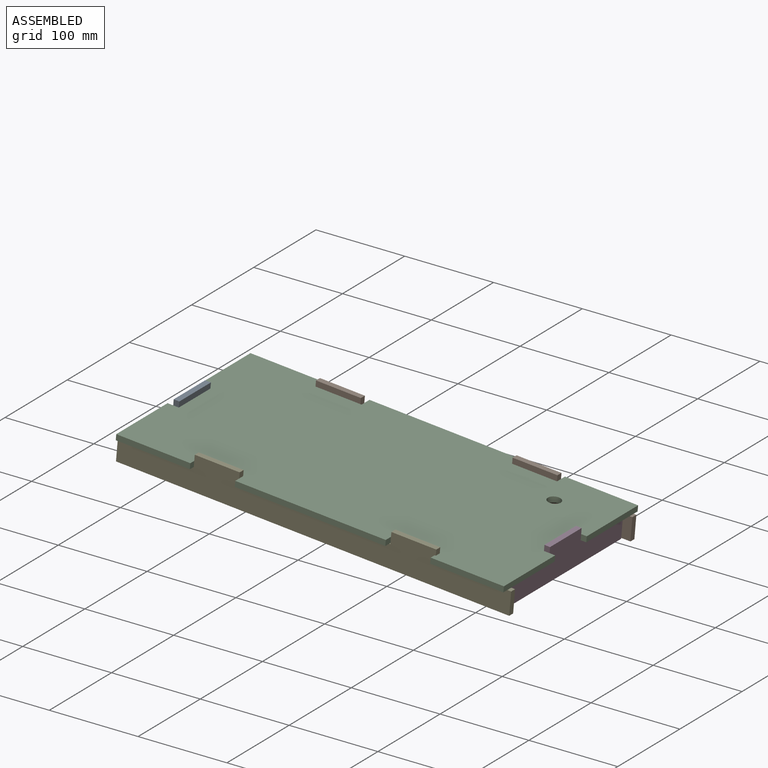
[diagram: assembled view]
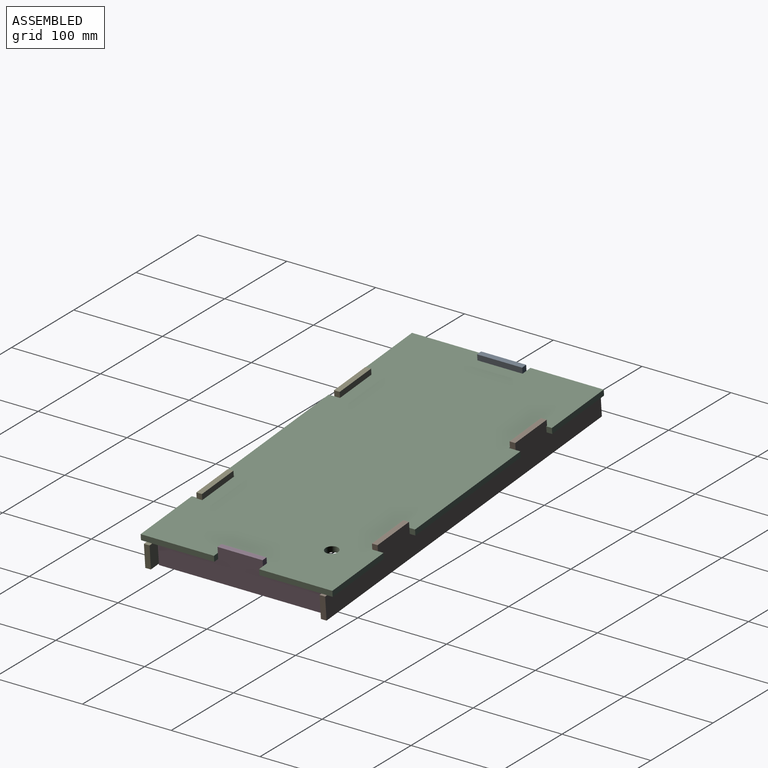
[diagram: assembled view, second angle]
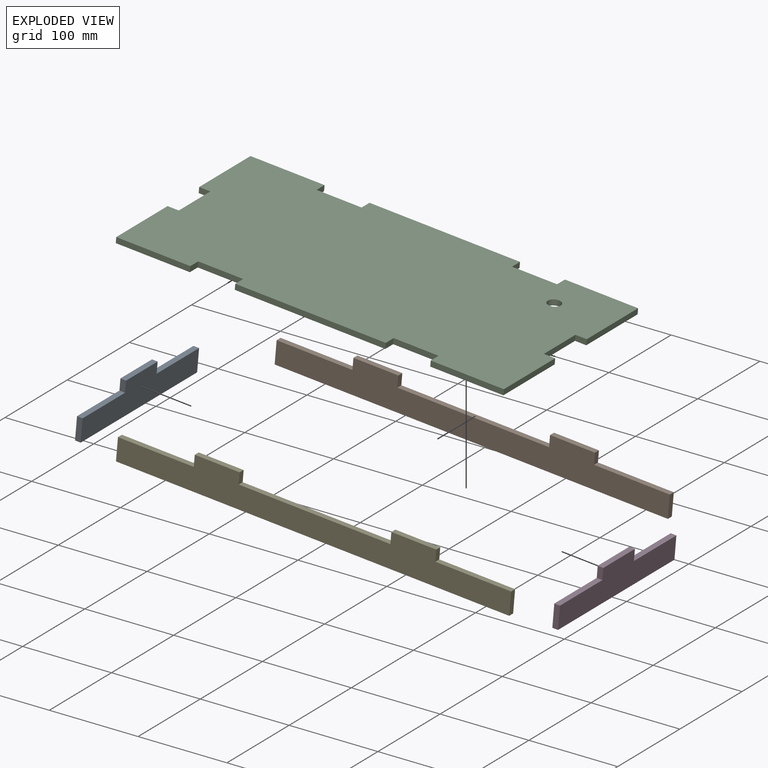
[diagram: exploded view]
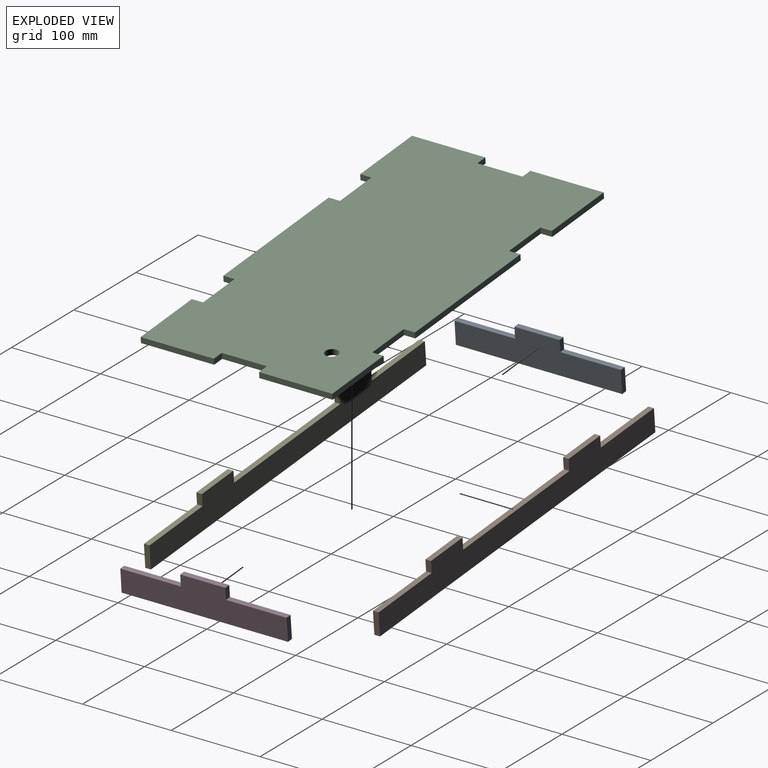
[diagram: exploded view, second angle]
ASSEMBLY  parts=5 mates=4
PART A: 10 faces, bbox 187.3x38.1x6.4 mm
  f0: plane 12.7x6.35mm, normal (1,0,0), area 80.6mm2, adj f1,f7,f8,f9
  f1: plane 50.8x6.35mm, normal (0,1,0), area 322.6mm2, adj f0,f2,f8,f9
  f2: plane 12.7x6.35mm, normal (-1,0,0), area 80.6mm2, adj f1,f3,f8,f9
  f3: plane 68.26x6.35mm, normal (0,1,0), area 433.5mm2, adj f2,f4,f8,f9
  f4: plane 25.4x6.35mm, normal (-1,0,0), area 161.3mm2, adj f3,f5,f8,f9
  f5: plane 187.33x6.35mm, normal (0,-1,0), area 1189.5mm2, adj f4,f6,f8,f9
  f6: plane 25.4x6.35mm, normal (1,0,0), area 161.3mm2, adj f5,f7,f8,f9
  f7: plane 68.26x6.35mm, normal (0,1,0), area 433.5mm2, adj f0,f6,f8,f9
  f8: plane 187.33x38.1mm, normal (0,0,1), area 5403.2mm2, adj f0,f1,f2,f3,f4,f5,f6,f7
  f9: plane 187.33x38.1mm, normal (0,0,-1), area 5403.2mm2, adj f0,f1,f2,f3,f4,f5,f6,f7
PART B: 14 faces, bbox 444.5x6.4x38.1 mm
  f0: plane 50.8x6.35mm, normal (0,0,1), area 322.6mm2, adj f1,f11,f12,f13
  f1: plane 12.7x6.35mm, normal (-1,0,0), area 80.6mm2, adj f0,f2,f12,f13
  f2: plane 85.73x6.35mm, normal (0,0,1), area 544.4mm2, adj f1,f3,f12,f13
  f3: plane 25.4x6.35mm, normal (-1,0,0), area 161.3mm2, adj f2,f4,f12,f13
  f4: plane 444.5x6.35mm, normal (0,0,-1), area 2822.6mm2, adj f3,f5,f12,f13
  f5: plane 25.4x6.35mm, normal (1,0,0), area 161.3mm2, adj f4,f6,f12,f13
  f6: plane 85.73x6.35mm, normal (0,0,1), area 544.4mm2, adj f5,f7,f12,f13
  f7: plane 12.7x6.35mm, normal (1,0,0), area 80.6mm2, adj f6,f8,f12,f13
  f8: plane 50.8x6.35mm, normal (0,0,1), area 322.6mm2, adj f7,f9,f12,f13
  f9: plane 12.7x6.35mm, normal (-1,0,0), area 80.6mm2, adj f8,f10,f12,f13
  f10: plane 171.45x6.35mm, normal (0,0,1), area 1088.7mm2, adj f9,f11,f12,f13
  f11: plane 12.7x6.35mm, normal (1,0,0), area 80.6mm2, adj f0,f10,f12,f13
  f12: plane 444.5x38.1mm, normal (0,-1,0), area 12580.6mm2, adj f0,f1,f2,f3,f4,f5,f6,f7
  f13: plane 444.5x38.1mm, normal (0,1,0), area 12580.6mm2, adj f0,f1,f2,f3,f4,f5,f6,f7
PART C: 31 faces, bbox 438.2x215.9x6.4 mm
  f0: plane 12.7x6.35mm, normal (-1,0,0), area 80.6mm2, adj f1,f27,f29,f30
  f1: plane 50.8x6.35mm, normal (0,1,0), area 322.6mm2, adj f0,f2,f29,f30
  f2: plane 12.7x6.35mm, normal (1,0,0), area 80.6mm2, adj f1,f3,f29,f30
  f3: plane 83.71x6.35mm, normal (0,1,0), area 531.6mm2, adj f2,f4,f29,f30
  f4: plane 82.55x6.35mm, normal (-1,0,0), area 524.2mm2, adj f3,f5,f29,f30
  f5: plane 12.7x6.35mm, normal (0,-1,0), area 80.6mm2, adj f4,f6,f29,f30
  f6: plane 50.8x6.35mm, normal (-1,0,0), area 322.6mm2, adj f5,f7,f29,f30
  f7: plane 12.7x6.35mm, normal (0,1,0), area 80.6mm2, adj f6,f8,f29,f30
  f8: plane 82.55x6.35mm, normal (-1,0,0), area 524.2mm2, adj f7,f9,f29,f30
  f9: plane 83.71x6.35mm, normal (0,-1,0), area 531.6mm2, adj f8,f10,f29,f30
  f10: plane 12.7x6.35mm, normal (1,0,0), area 80.6mm2, adj f9,f11,f29,f30
  f11: plane 50.8x6.35mm, normal (0,-1,0), area 322.6mm2, adj f10,f12,f29,f30
  f12: plane 12.7x6.35mm, normal (-1,0,0), area 80.6mm2, adj f11,f13,f29,f30
  f13: plane 170.15x6.35mm, normal (0,-1,0), area 1080.4mm2, adj f12,f14,f29,f30
  f14: plane 12.7x6.35mm, normal (1,0,0), area 80.6mm2, adj f13,f15,f29,f30
  f15: plane 50.8x6.35mm, normal (0,-1,0), area 322.6mm2, adj f14,f16,f29,f30
  f16: plane 12.7x6.35mm, normal (-1,0,0), area 80.6mm2, adj f15,f17,f29,f30
  f17: plane 82.69x6.35mm, normal (0,-1,0), area 525.1mm2, adj f16,f18,f29,f30
  f18: plane 82.55x6.35mm, normal (1,0,0), area 524.2mm2, adj f17,f19,f29,f30
  f19: plane 12.7x6.35mm, normal (0,1,0), area 80.6mm2, adj f18,f20,f29,f30
  f20: plane 50.8x6.35mm, normal (1,0,0), area 322.6mm2, adj f19,f21,f29,f30
  f21: plane 12.7x6.35mm, normal (0,-1,0), area 80.6mm2, adj f20,f22,f29,f30
  f22: plane 82.55x6.35mm, normal (1,0,0), area 524.2mm2, adj f21,f23,f29,f30
  f23: plane 82.69x6.35mm, normal (0,1,0), area 525.1mm2, adj f22,f24,f29,f30
  f24: plane 12.7x6.35mm, normal (-1,0,0), area 80.6mm2, adj f23,f25,f29,f30
  f25: plane 50.8x6.35mm, normal (0,1,0), area 322.6mm2, adj f24,f26,f29,f30
  f26: plane 12.7x6.35mm, normal (1,0,0), area 80.6mm2, adj f25,f27,f29,f30
  f27: plane 170.15x6.35mm, normal (0,1,0), area 1080.4mm2, adj f0,f26,f29,f30
  f28: cylinder r=7.28mm len=14.55mm, axis (0,0,-1), area 290.3mm2, adj f29,f30
  f29: plane 438.15x215.9mm, normal (0,0,1), area 90559.3mm2, adj f0,f1,f2,f3,f4,f5,f6,f7
  f30: plane 438.15x215.9mm, normal (0,0,-1), area 90559.3mm2, adj f0,f1,f2,f3,f4,f5,f6,f7
PART D: same geometry as A
PART E: same geometry as B
PLACE A rot(axis=(0.56,-0.56,-0.61),117.2deg) t=(-183.22,21.67,-5.03)mm
PLACE B rot(axis=(0,1,0),5deg) t=(-19.78,94.64,-12.39)mm
PLACE C rot(axis=(0,1,0),5deg) t=(10.59,-22.8,-9.31)mm
PLACE D rot(axis=(0.56,-0.56,-0.61),117.2deg) t=(234.29,21.67,-41.56)mm
PLACE E rot(axis=(0,1,0),5deg) t=(-18.48,-102.21,-12.5)mm
MATE fastened A.f9 <-> C.f6  axis (1,0,-0.09) through (-182.11,-32.36,7.55)mm
MATE fastened D.f8 <-> C.f20  axis (-1,0,0.09) through (229.06,-32.36,-28.42)mm
MATE fastened C.f11 <-> E.f13  axis (0,-1,0) through (-60.77,-102.21,-3.07)mm
MATE fastened B.f12 <-> C.f25  axis (0,-1,0) through (159.34,88.29,-22.32)mm
